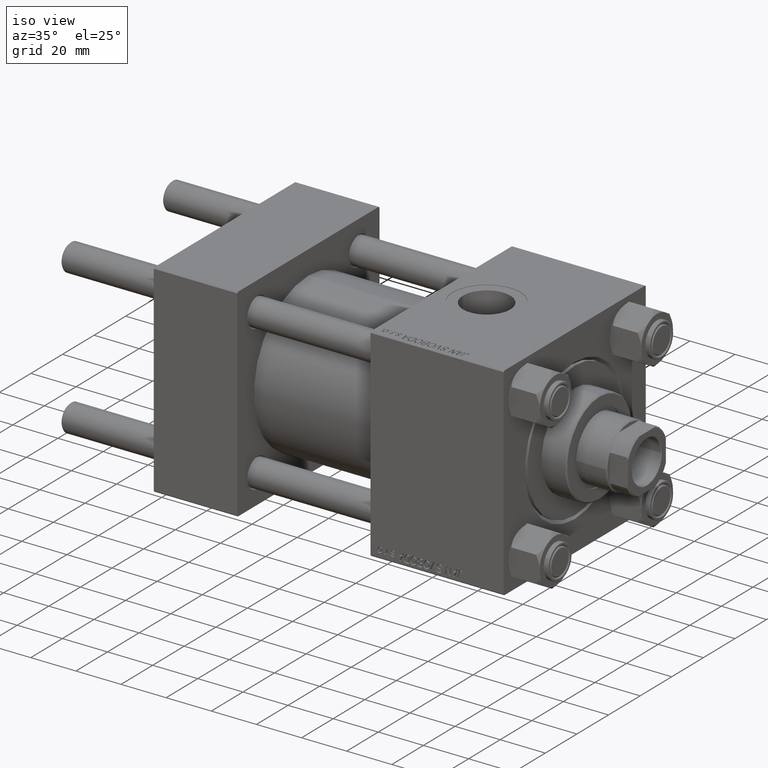
[diagram: clean part render]
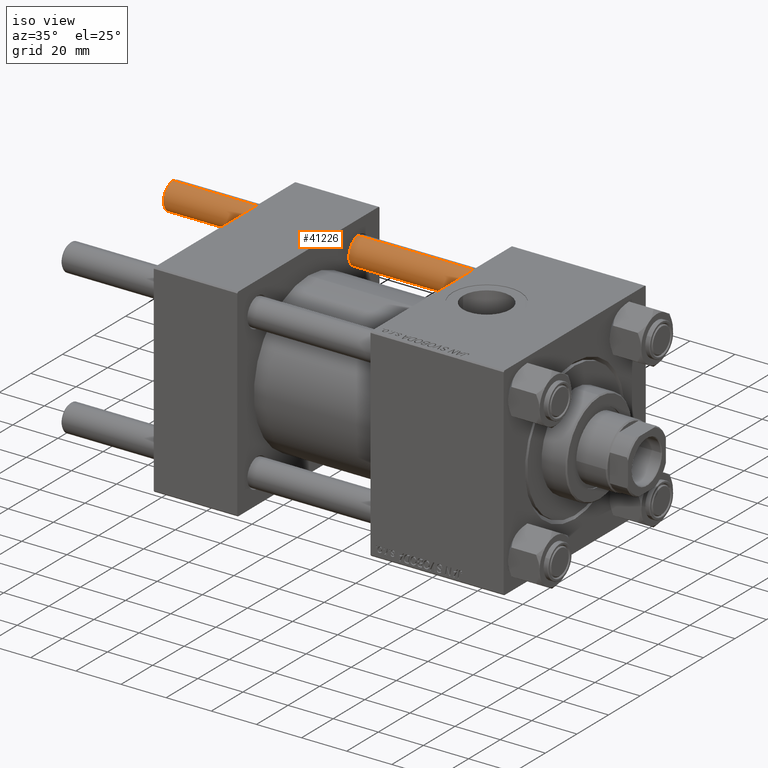
[diagram: same view with one face highlighted and labeled with its STEP entity id]
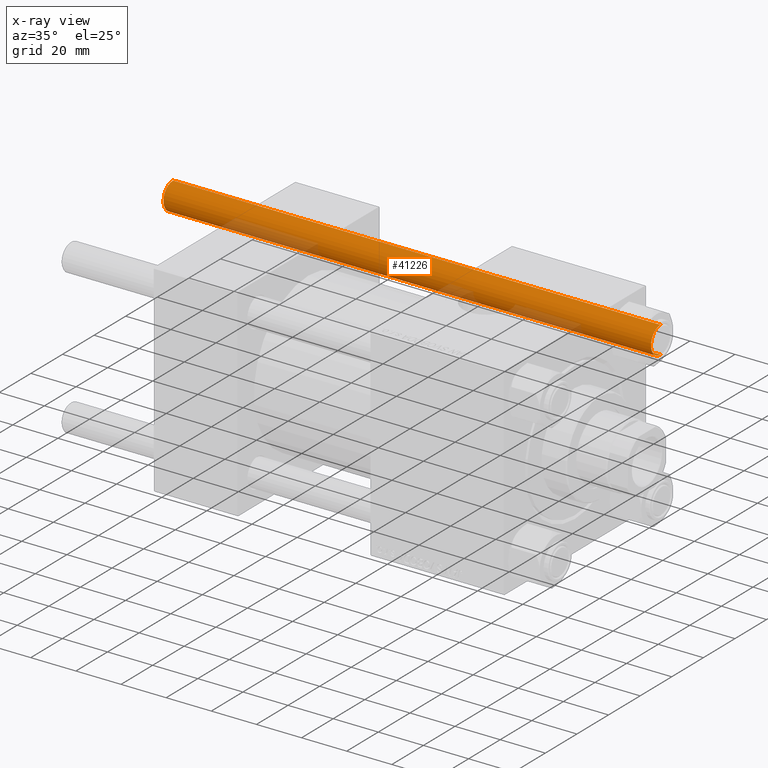
[diagram: x-ray of the same camera — body ghosted, the highlighted face saturated]
A machine part, iso view. The second image highlights one B-rep face of the part: STEP entity #41226.
The next image is the same camera in x-ray: the body ghosted, the highlighted face saturated — about 14% of this face is hidden behind the body in this view.
In plain terms, the highlighted cylindrical surface (edge-blend (fillet) strip) has radius 6 mm, axis along (-1, -0, -0).
Its self-contained STEP definition (entity closure, byte-faithful):
#1594 = EDGE_CURVE ( 'NONE', #37210, #4417, #19300, .T. ) ;
#2437 = EDGE_LOOP ( 'NONE', ( #22570, #26446, #14218, #42994 ) ) ;
#3132 = DIRECTION ( 'NONE',  ( -0.000000000000000000, -0.000000000000000000, 1.000000000000000000 ) ) ;
#3548 = AXIS2_PLACEMENT_3D ( 'NONE', #23420, #30697, #7503 ) ;
#4011 = AXIS2_PLACEMENT_3D ( 'NONE', #49019, #33679, #10468 ) ;
#4417 = VERTEX_POINT ( 'NONE', #30424 ) ;
#7503 = DIRECTION ( 'NONE',  ( -1.000000000000000000, 0.000000000000000000, 0.000000000000000000 ) ) ;
#10009 = VECTOR ( 'NONE', #13754, 1000.000000000000000 ) ;
#10468 = DIRECTION ( 'NONE',  ( 1.000000000000000000, 0.000000000000000000, 0.000000000000000000 ) ) ;
#11234 = VECTOR ( 'NONE', #43429, 1000.000000000000000 ) ;
#13754 = DIRECTION ( 'NONE',  ( -0.000000000000000000, -0.000000000000000000, -1.000000000000000000 ) ) ;
#14218 = ORIENTED_EDGE ( 'NONE', *, *, #21073, .T. ) ;
#15481 = CIRCLE ( 'NONE', #43676, 6.000000000000000888 ) ;
#16438 = LINE ( 'NONE', #31839, #11234 ) ;
#19300 = CIRCLE ( 'NONE', #4011, 6.000000000000000888 ) ;
#21073 = EDGE_CURVE ( 'NONE', #4417, #26779, #24878, .T. ) ;
#22570 = ORIENTED_EDGE ( 'NONE', *, *, #27005, .F. ) ;
#23420 = CARTESIAN_POINT ( 'NONE',  ( 0.000000000000000000, 0.000000000000000000, 217.0000000000000000 ) ) ;
#24878 = LINE ( 'NONE', #32424, #10009 ) ;
#26446 = ORIENTED_EDGE ( 'NONE', *, *, #1594, .T. ) ;
#26779 = VERTEX_POINT ( 'NONE', #48730 ) ;
#27005 = EDGE_CURVE ( 'NONE', #37210, #28680, #16438, .T. ) ;
#27178 = FACE_OUTER_BOUND ( 'NONE', #2437, .T. ) ;
#27964 = CARTESIAN_POINT ( 'NONE',  ( 6.000000000000000888, 7.347880794884120722E-16, 0.4999999999999449329 ) ) ;
#28680 = VERTEX_POINT ( 'NONE', #27964 ) ;
#30424 = CARTESIAN_POINT ( 'NONE',  ( -6.000000000000000888, 0.000000000000000000, 216.4999999999999716 ) ) ;
#30589 = DIRECTION ( 'NONE',  ( 1.000000000000000000, 0.000000000000000000, 0.000000000000000000 ) ) ;
#30697 = DIRECTION ( 'NONE',  ( -0.000000000000000000, -0.000000000000000000, -1.000000000000000000 ) ) ;
#31839 = CARTESIAN_POINT ( 'NONE',  ( 6.000000000000000888, 7.347880794884120722E-16, 217.0000000000000000 ) ) ;
#32424 = CARTESIAN_POINT ( 'NONE',  ( -6.000000000000000888, 0.000000000000000000, 217.0000000000000000 ) ) ;
#33679 = DIRECTION ( 'NONE',  ( 0.000000000000000000, 0.000000000000000000, -1.000000000000000000 ) ) ;
#37210 = VERTEX_POINT ( 'NONE', #45709 ) ;
#37241 = EDGE_CURVE ( 'NONE', #26779, #28680, #15481, .T. ) ;
#41226 = ADVANCED_FACE ( 'NONE', ( #27178 ), #42066, .T. ) ;
#42066 = CYLINDRICAL_SURFACE ( 'NONE', #3548, 6.000000000000000888 ) ;
#42994 = ORIENTED_EDGE ( 'NONE', *, *, #37241, .T. ) ;
#43429 = DIRECTION ( 'NONE',  ( -0.000000000000000000, -0.000000000000000000, -1.000000000000000000 ) ) ;
#43676 = AXIS2_PLACEMENT_3D ( 'NONE', #49713, #3132, #30589 ) ;
#45709 = CARTESIAN_POINT ( 'NONE',  ( 6.000000000000000888, 7.347880794884120722E-16, 216.4999999999999716 ) ) ;
#48730 = CARTESIAN_POINT ( 'NONE',  ( -6.000000000000000888, 0.000000000000000000, 0.4999999999999449329 ) ) ;
#49019 = CARTESIAN_POINT ( 'NONE',  ( 0.000000000000000000, 0.000000000000000000, 216.4999999999999716 ) ) ;
#49713 = CARTESIAN_POINT ( 'NONE',  ( 0.000000000000000000, 0.000000000000000000, 0.4999999999999449329 ) ) ;